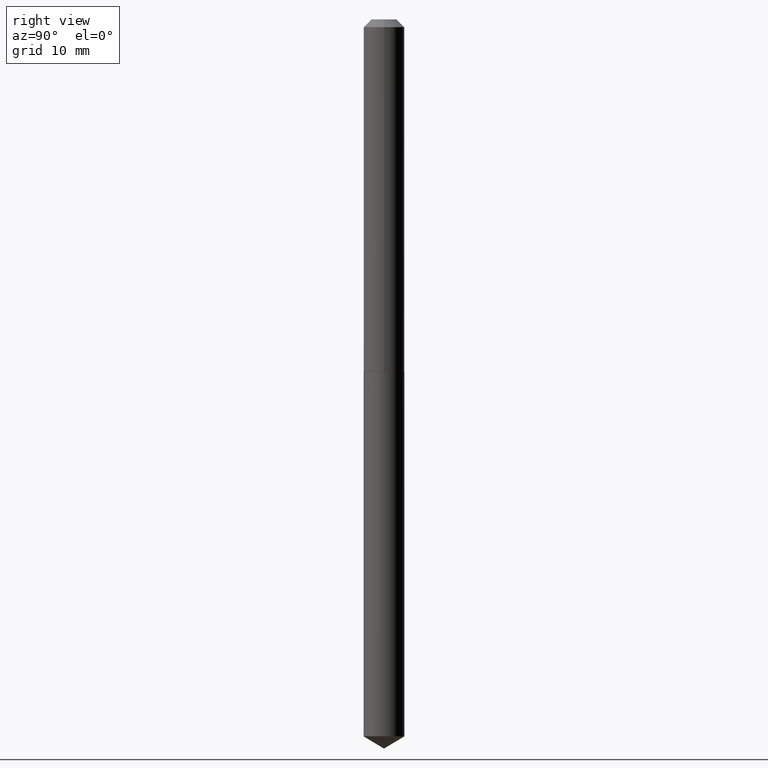
[diagram: clean part render]
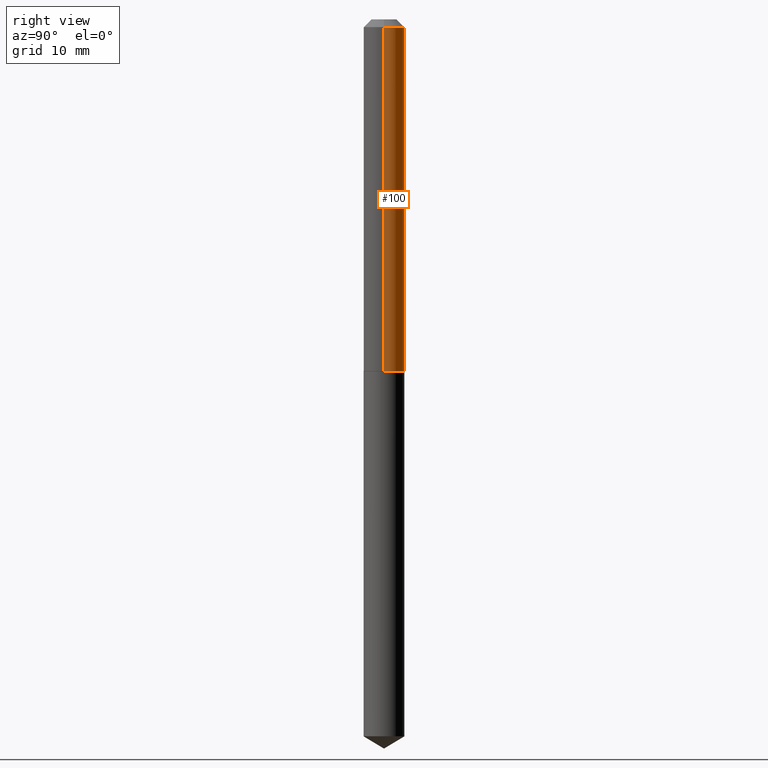
[diagram: same view with one face highlighted and labeled with its STEP entity id]
A machine part, right view. The second image highlights one B-rep face of the part: STEP entity #100.
In plain terms, the highlighted cylindrical surface (edge-blend (fillet) strip) has radius 2.1006 mm, axis along (-0, 0, 1).
Its self-contained STEP definition (entity closure, byte-faithful):
#24 = EDGE_CURVE ( 'NONE', #247, #37, #104, .T. ) ;
#25 = CARTESIAN_POINT ( 'NONE',  ( 7.642090019328600035E-31, -1.091087918388489897E-16, -0.03125000000000020123 ) ) ;
#36 = DIRECTION ( 'NONE',  ( -2.445468806185136597E-29, 3.491481338843145583E-15, 1.000000000000000000 ) ) ;
#37 = VERTEX_POINT ( 'NONE', #127 ) ;
#38 = LINE ( 'NONE', #66, #162 ) ;
#66 = CARTESIAN_POINT ( 'NONE',  ( 0.08270000000000007900, -5.774910134446548770E-16, 4.032598193583242774E-30 ) ) ;
#67 = DIRECTION ( 'NONE',  ( 1.000000000000000000, -6.982962677686267499E-15, 0.000000000000000000 ) ) ;
#71 = ORIENTED_EDGE ( 'NONE', *, *, #117, .T. ) ;
#77 = CARTESIAN_POINT ( 'NONE',  ( 0.08270000000000014839, -5.552153625028367676E-15, -1.424799999999999844 ) ) ;
#79 = AXIS2_PLACEMENT_3D ( 'NONE', #349, #113, #172 ) ;
#85 = DIRECTION ( 'NONE',  ( -2.445468806185136597E-29, 3.491481338843145583E-15, 1.000000000000000000 ) ) ;
#89 = ORIENTED_EDGE ( 'NONE', *, *, #225, .T. ) ;
#100 = ADVANCED_FACE ( 'NONE', ( #107 ), #358, .T. ) ;
#104 = CIRCLE ( 'NONE', #283, 0.08269999999999999574 ) ;
#105 = EDGE_LOOP ( 'NONE', ( #89, #71, #125, #201 ) ) ;
#107 = FACE_OUTER_BOUND ( 'NONE', #105, .T. ) ;
#113 = DIRECTION ( 'NONE',  ( -2.445468806185136597E-29, 3.491481338843145583E-15, 1.000000000000000000 ) ) ;
#117 = EDGE_CURVE ( 'NONE', #387, #37, #296, .T. ) ;
#125 = ORIENTED_EDGE ( 'NONE', *, *, #24, .F. ) ;
#127 = CARTESIAN_POINT ( 'NONE',  ( -0.08269999999999999574, -1.954266859237676647E-15, -0.03125000000000020123 ) ) ;
#135 = AXIS2_PLACEMENT_3D ( 'NONE', #204, #85, #211 ) ;
#162 = VECTOR ( 'NONE', #240, 39.37007874015748143 ) ;
#172 = DIRECTION ( 'NONE',  ( 1.000000000000000000, -6.982962677686260400E-15, 0.000000000000000000 ) ) ;
#175 = CARTESIAN_POINT ( 'NONE',  ( 0.08269999999999999574, -6.865998052835032874E-16, -0.03125000000000020123 ) ) ;
#180 = EDGE_CURVE ( 'NONE', #388, #247, #38, .T. ) ;
#201 = ORIENTED_EDGE ( 'NONE', *, *, #180, .F. ) ;
#204 = CARTESIAN_POINT ( 'NONE',  ( 0.000000000000000000, 0.000000000000000000, 0.000000000000000000 ) ) ;
#211 = DIRECTION ( 'NONE',  ( 1.000000000000000000, -6.982962677686267499E-15, 4.876176775795935793E-29 ) ) ;
#225 = EDGE_CURVE ( 'NONE', #388, #387, #376, .T. ) ;
#240 = DIRECTION ( 'NONE',  ( -2.445468806185136877E-29, 3.491481338843145188E-15, 1.000000000000000000 ) ) ;
#241 = CARTESIAN_POINT ( 'NONE',  ( -0.08270000000000014839, -4.387043769110109384E-15, -1.424799999999999844 ) ) ;
#247 = VERTEX_POINT ( 'NONE', #175 ) ;
#283 = AXIS2_PLACEMENT_3D ( 'NONE', #25, #36, #67 ) ;
#296 = LINE ( 'NONE', #353, #321 ) ;
#318 = DIRECTION ( 'NONE',  ( -2.445468806185136877E-29, 3.491481338843145188E-15, 1.000000000000000000 ) ) ;
#321 = VECTOR ( 'NONE', #318, 39.37007874015748143 ) ;
#349 = CARTESIAN_POINT ( 'NONE',  ( 3.484303955052581857E-29, -4.974662611583712996E-15, -1.424799999999999844 ) ) ;
#353 = CARTESIAN_POINT ( 'NONE',  ( -0.08270000000000007900, 5.876188424736034151E-16, -4.067959319640811108E-30 ) ) ;
#358 = CYLINDRICAL_SURFACE ( 'NONE', #135, 0.08270000000000007900 ) ;
#376 = CIRCLE ( 'NONE', #79, 0.08270000000000014839 ) ;
#387 = VERTEX_POINT ( 'NONE', #241 ) ;
#388 = VERTEX_POINT ( 'NONE', #77 ) ;